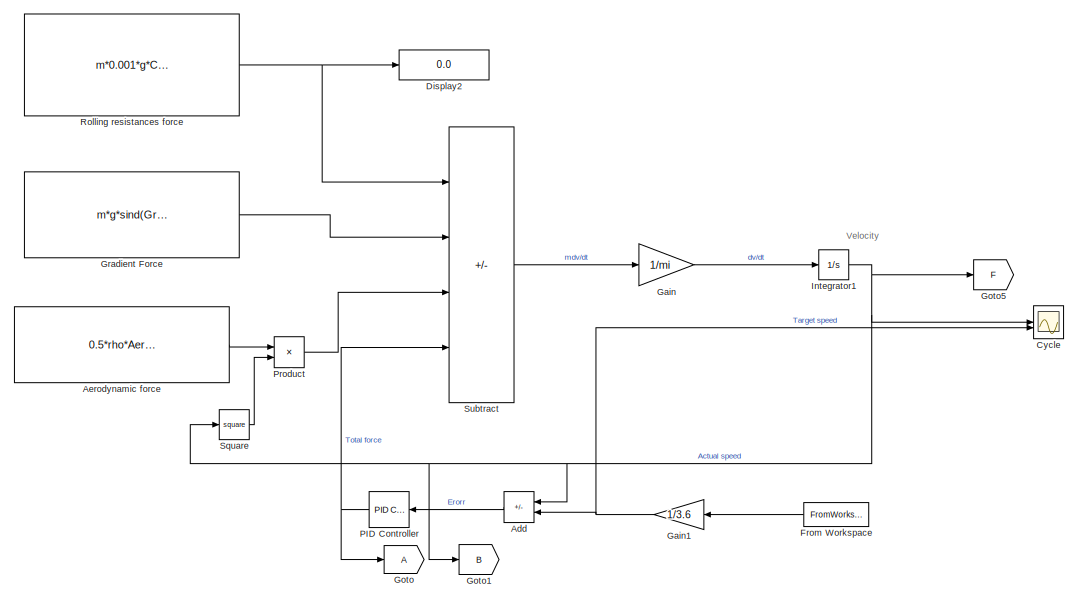
[diagram: root canvas - part 1/4, central region]
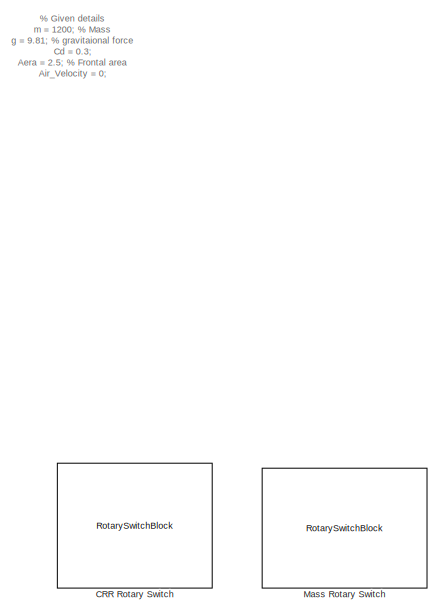
[diagram: root canvas - part 2/4, middle left region]
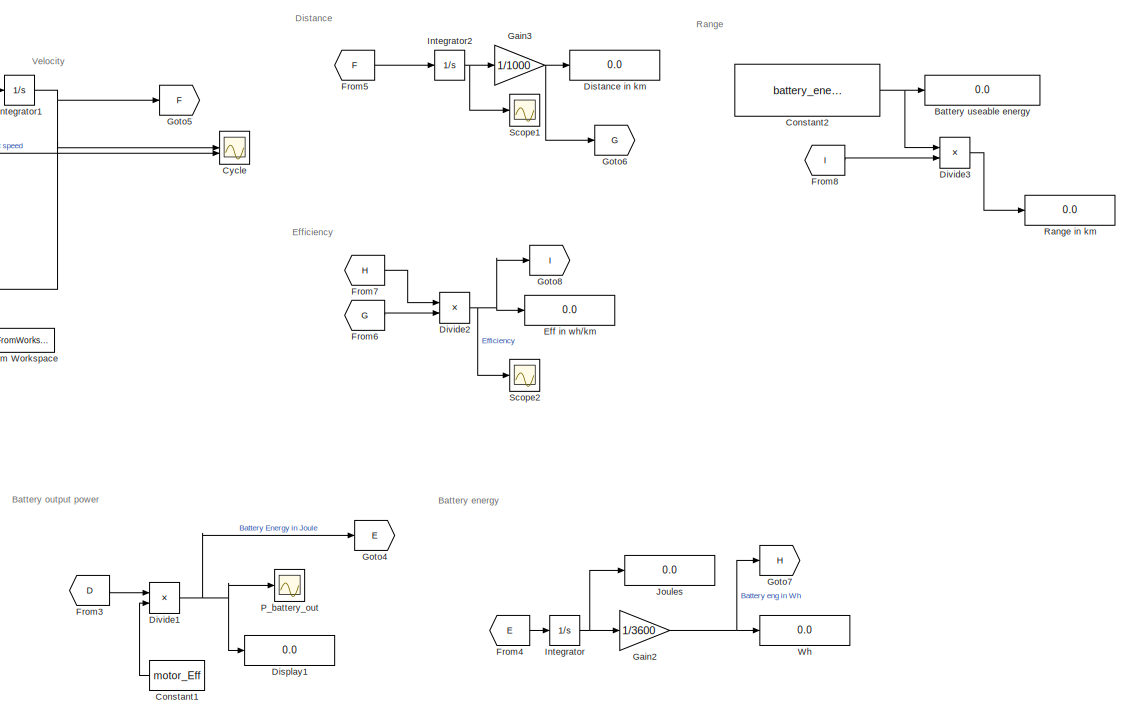
[diagram: root canvas - part 3/4, right side, full height]
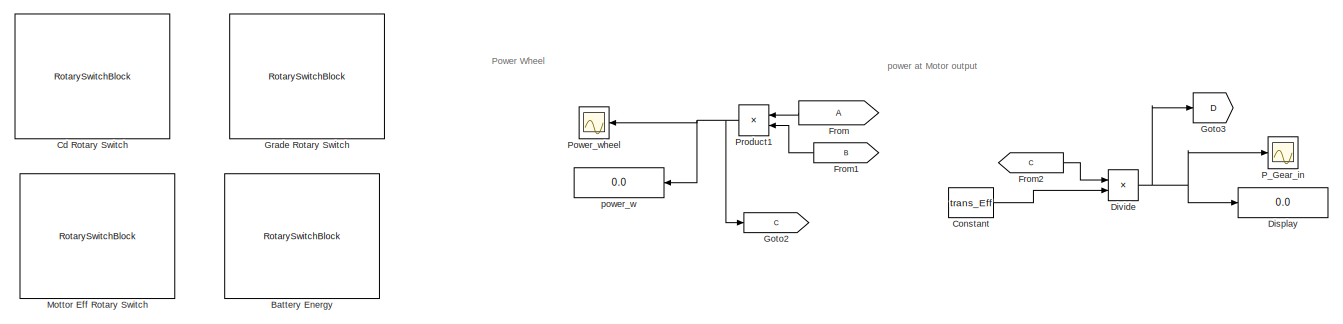
[diagram: root canvas - part 4/4, bottom left region]
MODEL slx_df8b2315dade
KIND model
CONFIG AbsTol = auto
CONFIG EnableMultiTasking = off
CONFIG FixedStep = auto
CONFIG MaxStep = auto
CONFIG MinStep = auto
CONFIG RelTol = 1e-3
CONFIG SampleTimeConstraint = Unconstrained
CONFIG SolverName = VariableStepAuto
CONFIG StartTime = 0.0
CONFIG StopTime = simtime
BLOCK [Sum] Add
  IconShape = rectangular
  Inputs = -+
  NameLocation = top
BLOCK [Constant] Aerodynamic force
  Value = 0.5*rho*Aera*Cd
BLOCK [RotarySwitchBlock] Battery Energy
BLOCK [Display] Battery useable energy
  Decimation = 1
  Format = long
BLOCK [RotarySwitchBlock] CRR Rotary Switch
BLOCK [RotarySwitchBlock] Cd Rotary Switch
BLOCK [Constant] Constant
  Value = trans_Eff
BLOCK [Constant] Constant1
  NameLocation = top
  Value = motor_Eff
BLOCK [Constant] Constant2
  Value = battery_energy*DOD*1000
BLOCK [Scope] Cycle
  Floating = off
  NumInputPorts = 2
  ScopeSpecificationString = Simulink.scopes.TimeScopeBlockCfg('CurrentConfiguration', extmgr.ConfigurationSet(extmgr.Configuration('Core','General UI',true),extmgr.Configuration('Core','Source UI',true),extmgr.Configuration('Sources','WiredSimulink',true,'DataLoggingVariableName','ScopeData1'),extmgr.Configuration('Visuals','Time Domain',true,'SerializedDisplays',{struct('MinYLimReal','-3.25178','MaxYLimReal','28.13909','YLa...<+1493ch>
BLOCK [Display] Display
  Decimation = 1
BLOCK [Display] Display1
  Decimation = 1
BLOCK [Display] Display2
  Decimation = 1
BLOCK [Display] Distance in km
  Decimation = 1
  Format = long
BLOCK [Product] Divide
  Inputs = */
BLOCK [Product] Divide1
  Inputs = */
BLOCK [Product] Divide2
  Inputs = */
BLOCK [Product] Divide3
  Inputs = */
BLOCK [Display] Eff in wh//km
  Decimation = 1
BLOCK [From] From
  NameLocation = top
BLOCK [FromWorkspace] From Workspace
  NameLocation = top
  VariableName = drive_cycle
BLOCK [From] From1
  GotoTag = B
  NameLocation = top
BLOCK [From] From2
  GotoTag = C
BLOCK [From] From3
  GotoTag = D
BLOCK [From] From4
  GotoTag = E
BLOCK [From] From5
  GotoTag = F
BLOCK [From] From6
  GotoTag = G
BLOCK [From] From7
  GotoTag = H
BLOCK [From] From8
  GotoTag = I
BLOCK [Gain] Gain
  Gain = 1/mi
BLOCK [Gain] Gain1
  Gain = 1/3.6
  NameLocation = top
BLOCK [Gain] Gain2
  Gain = 1/3600
BLOCK [Gain] Gain3
  Gain = 1/1000
BLOCK [Goto] Goto
BLOCK [Goto] Goto1
  GotoTag = B
BLOCK [Goto] Goto2
  GotoTag = C
  NameLocation = top
BLOCK [Goto] Goto3
  GotoTag = D
BLOCK [Goto] Goto4
  GotoTag = E
BLOCK [Goto] Goto5
  GotoTag = F
BLOCK [Goto] Goto6
  GotoTag = G
BLOCK [Goto] Goto7
  GotoTag = H
BLOCK [Goto] Goto8
  GotoTag = I
BLOCK [RotarySwitchBlock] Grade Rotary Switch
BLOCK [Constant] Gradient Force 
  Value = m*g*sind(Grade)
BLOCK [Integrator] Integrator
BLOCK [Integrator] Integrator1
BLOCK [Integrator] Integrator2
BLOCK [Display] Joules
  Decimation = 1
  Format = long
BLOCK [RotarySwitchBlock] Mass Rotary Switch
BLOCK [RotarySwitchBlock] Mottor Eff Rotary Switch
BLOCK [Reference] PID Controller  REF=slpidlib/PID Controller
  LibrarySourceBlock = simulink/Continuous/PID Controller
  NameLocation = top
  SourceBlock = slpidlib/PID Controller
  SourceType = PID 1dof
BLOCK [Scope] P_Gear_in
  Floating = off
  NumInputPorts = 1
  ScopeSpecificationString = Simulink.scopes.TimeScopeBlockCfg('CurrentConfiguration', extmgr.ConfigurationSet(extmgr.Configuration('Core','General UI',true),extmgr.Configuration('Core','Source UI',true),extmgr.Configuration('Sources','WiredSimulink',true,'DataLoggingVariableName','ScopeData3'),extmgr.Configuration('Visuals','Time Domain',true,'SerializedDisplays',{struct('MinYLimReal','-26570.72202','MaxYLimReal','22945.3566...<+1424ch>
BLOCK [Scope] P_battery_out
  Floating = off
  NumInputPorts = 1
  ScopeSpecificationString = Simulink.scopes.TimeScopeBlockCfg('CurrentConfiguration', extmgr.ConfigurationSet(extmgr.Configuration('Core','General UI',true),extmgr.Configuration('Core','Source UI',true),extmgr.Configuration('Sources','WiredSimulink',true,'DataLoggingVariableName','ScopeData4'),extmgr.Configuration('Visuals','Time Domain',true,'SerializedDisplays',{struct('MinYLimReal','-33213.40253','MaxYLimReal','28681.6957...<+1441ch>
BLOCK [Scope] Power_wheel
  Floating = off
  NameLocation = top
  NumInputPorts = 1
  ScopeSpecificationString = Simulink.scopes.TimeScopeBlockCfg('CurrentConfiguration', extmgr.ConfigurationSet(extmgr.Configuration('Core','General UI',true),extmgr.Configuration('Core','Source UI',true),extmgr.Configuration('Sources','WiredSimulink',true,'DataLoggingVariableName','ScopeData5'),extmgr.Configuration('Visuals','Time Domain',true,'SerializedDisplays',{struct('MinYLimReal','-24710.77148','MaxYLimReal','21339.1816...<+1433ch>
BLOCK [Product] Product
BLOCK [Product] Product1
  NameLocation = top
BLOCK [Display] Range in km
  Decimation = 1
BLOCK [Constant] Rolling resistances force
  Value = m*0.001*g*CRR*cosd(Grade)
BLOCK [Scope] Scope1
  Floating = off
  NumInputPorts = 1
  ScopeSpecificationString = Simulink.scopes.TimeScopeBlockCfg('CurrentConfiguration', extmgr.ConfigurationSet(extmgr.Configuration('Core','General UI',true),extmgr.Configuration('Core','Source UI',true),extmgr.Configuration('Sources','WiredSimulink',true,'DataLoggingVariableName','ScopeData6'),extmgr.Configuration('Visuals','Time Domain',true,'SerializedDisplays',{struct('MinYLimReal','-2893.57115','MaxYLimReal','26038.47578...<+1425ch>
BLOCK [Scope] Scope2
  Floating = off
  NumInputPorts = 1
  ScopeSpecificationString = Simulink.scopes.TimeScopeBlockCfg('CurrentConfiguration', extmgr.ConfigurationSet(extmgr.Configuration('Core','General UI',true),extmgr.Configuration('Core','Source UI',true),extmgr.Configuration('Sources','WiredSimulink',true),extmgr.Configuration('Visuals','Time Domain',true,'SerializedDisplays',{struct('MinYLimReal','-10868.37179','MaxYLimReal','51729.14503','YLabelReal','','MinYLimMag','   0.0...<+1382ch>
BLOCK [Math] Square
  Operator = square
BLOCK [Sum] Subtract
  IconShape = rectangular
  Inputs = ---+
BLOCK [Display] Wh
  Decimation = 1
BLOCK [Display] power_w
  Decimation = 1
  NameLocation = top
ANNOTATION (root): % Given details m = 1200; % Mass g = 9.81; % gravitaional force Cd = 0.3; Aera = 2.5; % Frontal area Air_Velocity = 0; r = 0.27; % Wheel Radius Grade = 0; % in dgree CRR = 10; % Co-efficient of rolling resistance imf = 1.035; % inertial mass factor mi = inertial_mass * m; % beta GR = 10; % Gear Ratio trans_Eff = 0.93; %Transmission efficiency motor_Eff = 0.8; % Motor + inverter efficiency battery_...<+268ch>
ANNOTATION (root): Battery energy
ANNOTATION (root): Battery output power
ANNOTATION (root): Distance
ANNOTATION (root): Efficiency
ANNOTATION (root): Power Wheel
ANNOTATION (root): Range
ANNOTATION (root): Velocity
ANNOTATION (root): power at Motor output
LINE Add:1 -> PID Controller:1
LINE Aerodynamic force:1 -> Product:1
LINE Constant1:1 -> Divide1:2
NET Constant2:1 -> Battery useable energy:1, Divide3:1
LINE Constant:1 -> Divide:2
NET Divide1:1 -> Display1:1, Goto4:1, P_battery_out:1
NET Divide2:1 -> Eff in wh//km:1, Goto8:1, Scope2:1
LINE Divide3:1 -> Range in km:1
NET Divide:1 -> Display:1, Goto3:1, P_Gear_in:1
LINE From Workspace:1 -> Gain1:1
LINE From1:1 -> Product1:2
LINE From2:1 -> Divide:1
LINE From3:1 -> Divide1:1
LINE From4:1 -> Integrator:1
LINE From5:1 -> Integrator2:1
LINE From6:1 -> Divide2:2
LINE From7:1 -> Divide2:1
LINE From8:1 -> Divide3:2
LINE From:1 -> Product1:1
NET Gain1:1 -> Add:2, Cycle:2
NET Gain2:1 -> Goto7:1, Wh:1
NET Gain3:1 -> Distance in km:1, Goto6:1
LINE Gain:1 -> Integrator1:1
LINE Gradient Force :1 -> Subtract:2
NET Integrator1:1 -> Add:1, Cycle:1, Goto1:1, Goto5:1, Square:1
NET Integrator2:1 -> Gain3:1, Scope1:1
NET Integrator:1 -> Gain2:1, Joules:1
NET PID Controller:1 -> Goto:1, Subtract:4
NET Product1:1 -> Goto2:1, Power_wheel:1, power_w:1
LINE Product:1 -> Subtract:3
NET Rolling resistances force:1 -> Display2:1, Subtract:1
LINE Square:1 -> Product:2
LINE Subtract:1 -> Gain:1
note: NET lines group one-source signal fan-out (src -> all destinations, sorted); 1:1 wires keep LINE
